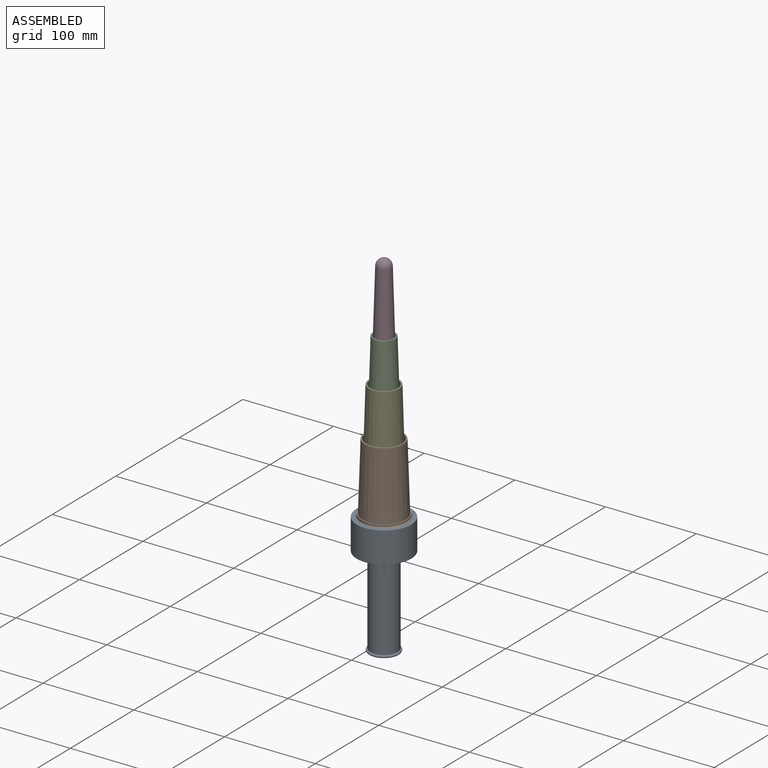
[diagram: assembled view]
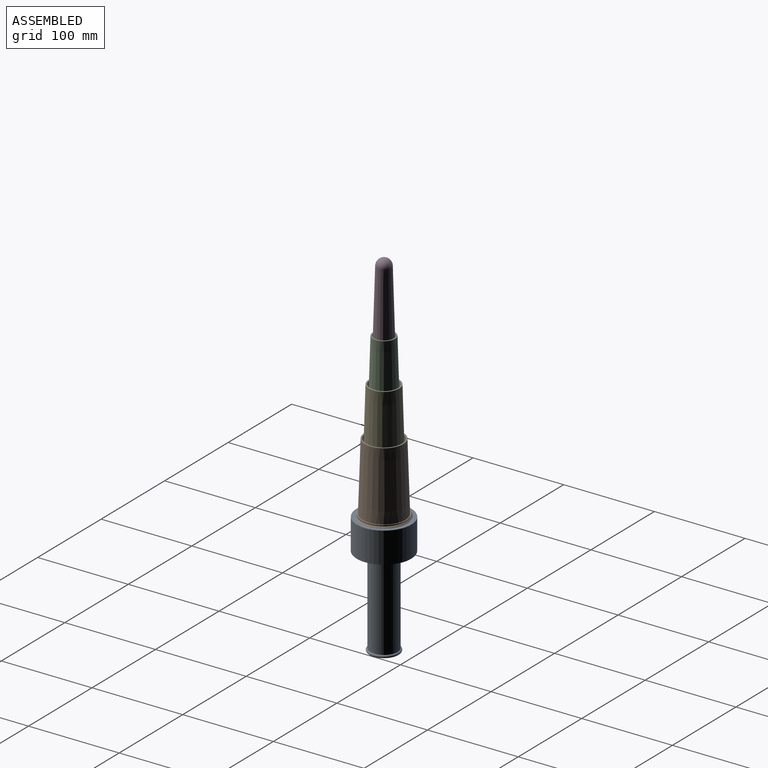
[diagram: assembled view, second angle]
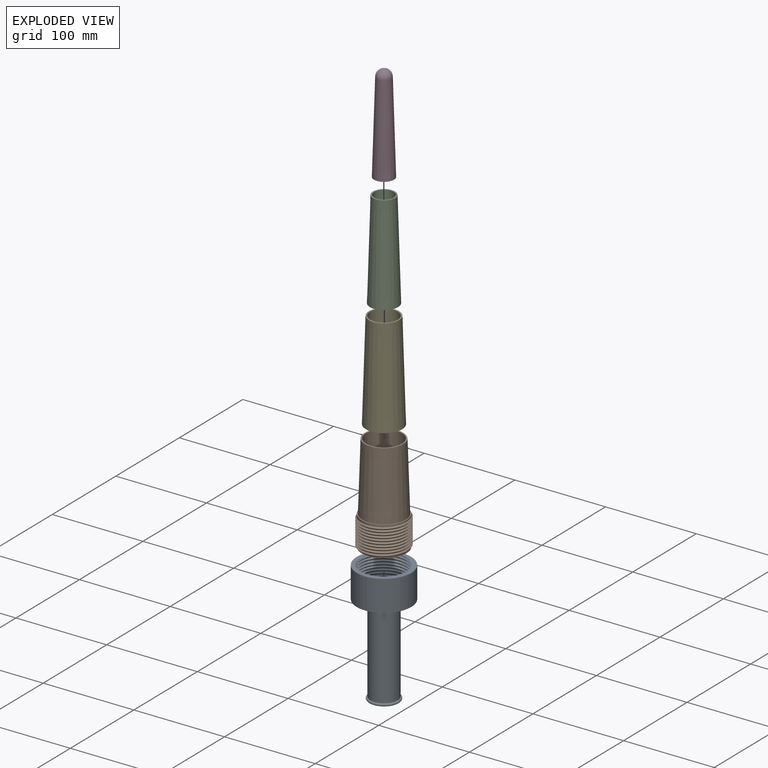
[diagram: exploded view]
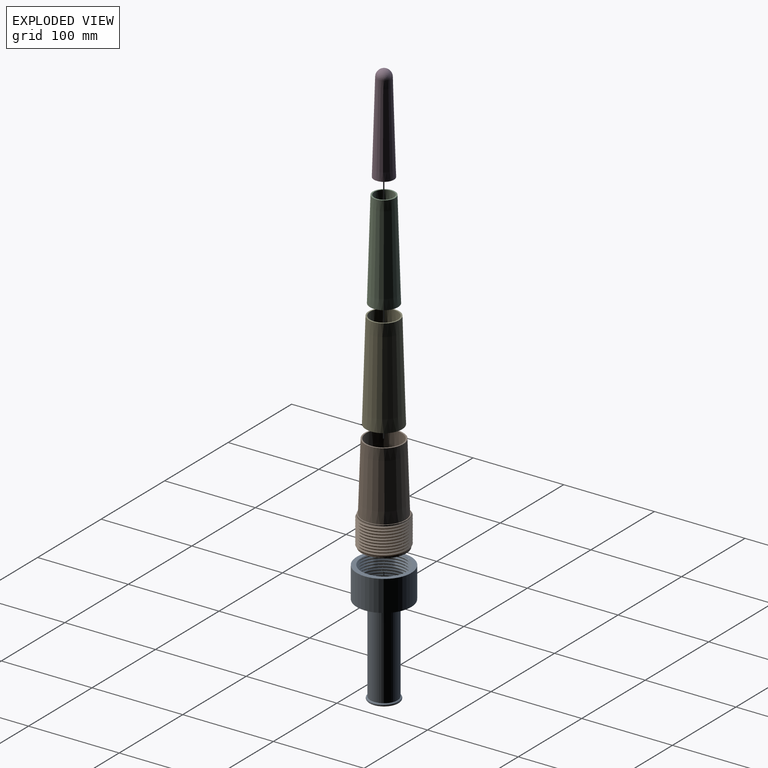
[diagram: exploded view, second angle]
ASSEMBLY  parts=5 mates=5
PART A: 13 faces, bbox 60.1x60.2x136 mm
  f0: cylinder r=26.05mm len=52.1mm, axis (0,0,1), area 510.1mm2, adj f4,f5,f10,f11,f12
  f1: cylinder r=15mm len=97mm, axis (0,0,1), area 9142mm2, adj f7,f8
  f2: plane 22x22mm, normal (0,0,1), area 380.1mm2, adj f3
  f3: cylinder r=11mm len=101mm, axis (0,0,1), area 6980.6mm2, adj f2,f4
  f4: plane 52.1x52.1mm, normal (0,0,1), area 1751.8mm2, adj f0,f3
  f5: plane 60.1x60.1mm, normal (0,0,1), area 811.5mm2, adj f0,f6,f11,f12
  f6: cylinder r=30.05mm len=60.1mm, axis (0,0,1), area 6419.5mm2, adj f5,f7
  f7: plane 60.1x60.1mm, normal (0,0,-1), area 2130mm2, adj f1,f6
  f8: torus R=15mm, axis (0,0,1), area 472.4mm2, adj f1,f9
  f9: plane 30x30mm, normal (0,0,-1), area 706.9mm2, adj f8
  f10: plane 3x1.32mm, normal (0,1,0), area 2mm2, adj f0,f11,f12
  f11: bspline ~60.16x52.1mm, area 3108.7mm2, adj f0,f5,f10,f12
  f12: bspline ~60.16x52.1mm, area 2961.9mm2, adj f0,f5,f10,f11
PART B: 13 faces, bbox 52.1x60.1x107.9 mm
  f0: cone r=21.23mm half-angle=1.9deg, axis (0,0,-1), area 10572.9mm2, adj f3,f12
  f1: plane 49.44x49.44mm, normal (0,0,-1), area 225.9mm2, adj f2,f5
  f2: cone r=23.22mm half-angle=1.9deg, axis (0,0,-1), area 14572.6mm2, adj f1,f3
  f3: plane 42.46x42.46mm, normal (0,0,1), area 193mm2, adj f0,f2
  f4: plane 49.44x49.44mm, normal (0,0,1), area 7.2mm2, adj f5,f6,f11
  f5: cylinder r=24.72mm len=49.44mm, axis (0,0,1), area 484.1mm2, adj f1,f4,f7,f9,f10
  f6: cylinder r=24.72mm len=49.44mm, axis (0,0,1), area 232.8mm2, adj f4,f8,f9
  f7: plane 3x1.32mm, normal (0,1,0), area 2mm2, adj f5,f9,f10
  f8: plane 3x1.32mm, normal (0,-1,0), area 2mm2, adj f6,f9,f10
  f9: bspline ~60.14x52.09mm, area 3183.8mm2, adj f5,f6,f7,f8,f10
  f10: bspline ~60.14x52.09mm, area 3183.8mm2, adj f5,f7,f8,f9
  f11: cylinder r=24.67mm len=49.35mm, axis (0,0,1), area 465.1mm2, adj f4,f12
  f12: plane 49.35x49.35mm, normal (0,0,1), area 155mm2, adj f0,f11
PART C: 4 faces, bbox 31x31x108 mm
  f0: plane 30.98x30.98mm, normal (0,0,-1), area 138.9mm2, adj f1,f3
  f1: cone r=13.99mm half-angle=1.7deg, axis (0,0,-1), area 8394.1mm2, adj f0,f2
  f2: plane 24.5x24.5mm, normal (0,0,1), area 108.4mm2, adj f1,f3
  f3: cone r=12.25mm half-angle=1.7deg, axis (0,0,-1), area 9412mm2, adj f0,f2
PART D: 5 faces, bbox 22x22x107.7 mm
  f0: sphere r=8mm, area 390.4mm2, adj f1
  f1: cone r=8mm half-angle=1.7deg, axis (0,0,-1), area 5969mm2, adj f0,f2
  f2: plane 22x22mm, normal (0,0,-1), area 96.6mm2, adj f1,f3
  f3: cone r=9.5mm half-angle=1.7deg, axis (0,0,-1), area 5024.7mm2, adj f2,f4
  f4: sphere r=6.5mm, area 257.8mm2, adj f3
PART E: 4 faces, bbox 40x40x108 mm
  f0: plane 39.96x39.96mm, normal (0,0,-1), area 181.2mm2, adj f1,f3
  f1: cone r=18.48mm half-angle=1.7deg, axis (0,0,-1), area 11440.9mm2, adj f0,f2
  f2: plane 33.48x33.48mm, normal (0,0,1), area 150.7mm2, adj f1,f3
  f3: cone r=16.74mm half-angle=1.7deg, axis (0,0,-1), area 12458.8mm2, adj f0,f2
PLACE A t=(-120.51,137.65,-409.12)mm
PLACE B t=(-120.51,137.65,-364.23)mm
PLACE C t=(-120.51,137.65,-261.79)mm
PLACE D rot(axis=(0,0,-1),90deg) t=(-120.51,137.65,-198.2)mm
PLACE E t=(-120.51,137.65,-310.09)mm
MATE slider B.f0 <-> E.f1  axis (0,0,-1) through (-120.51,137.65,-338.65)mm
MATE slider C.f1 <-> E.f1  axis (0,0,-1) through (-120.51,137.65,-252.61)mm
MATE slider B.f0 <-> A.f0  axis (0,0,-1) through (-120.51,137.65,-338.65)mm
MATE slider D.f3 <-> C.f1  axis (0,0,-1) through (-120.51,137.65,-178.98)mm
MATE planar A.f4 <-> B.f0  axis (0,0,1) through (-146.56,137.65,-409.12)mm
